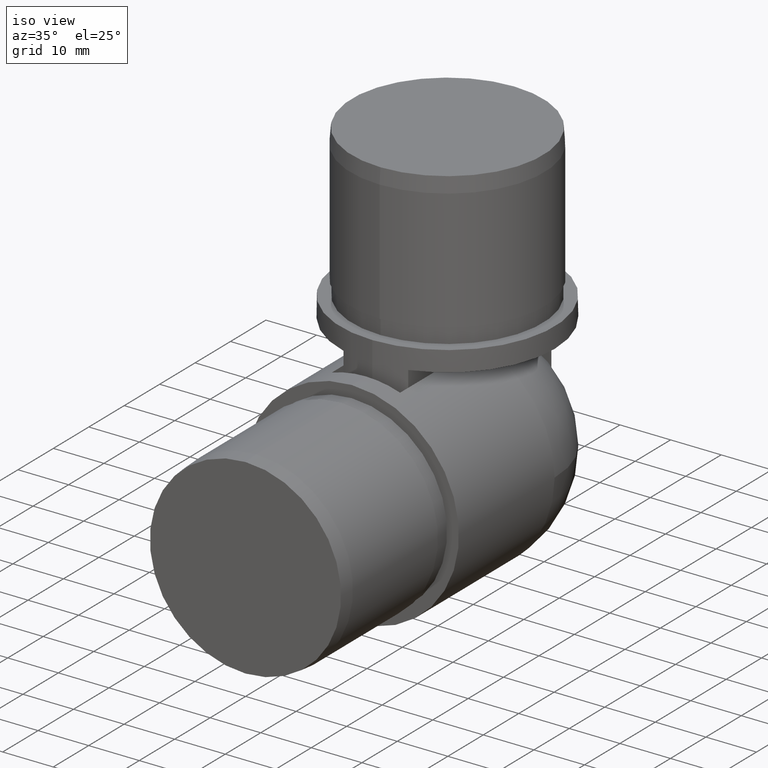
[diagram: clean part render]
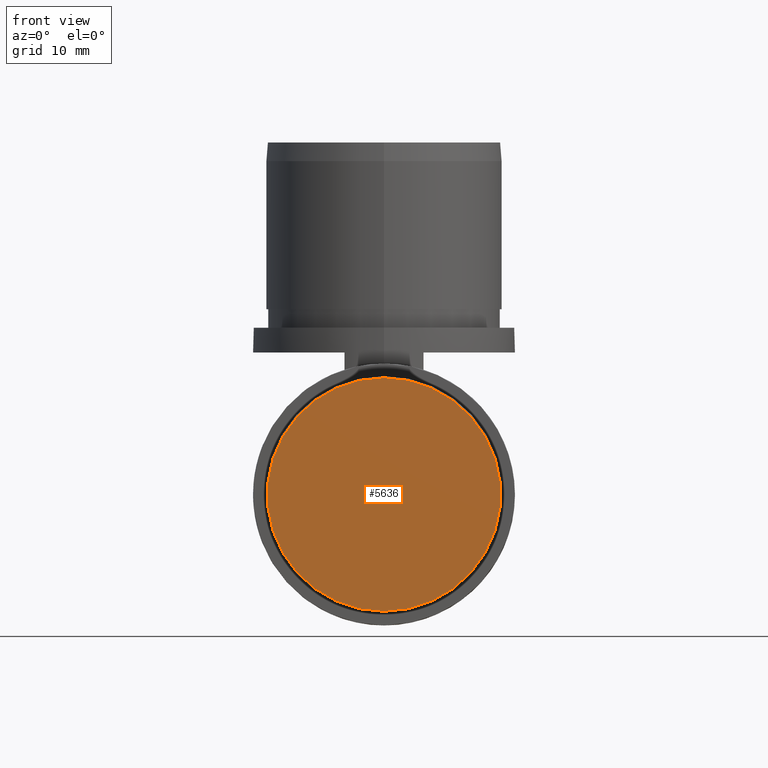
[diagram: tour spotlight — one face highlighted and labeled with its STEP entity id]
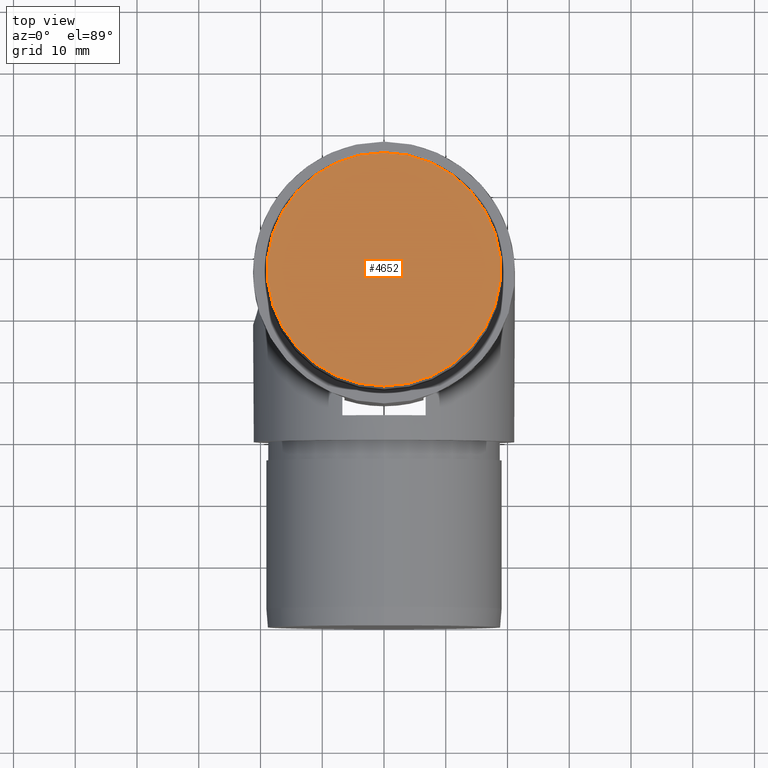
[diagram: tour spotlight — one face highlighted and labeled with its STEP entity id]
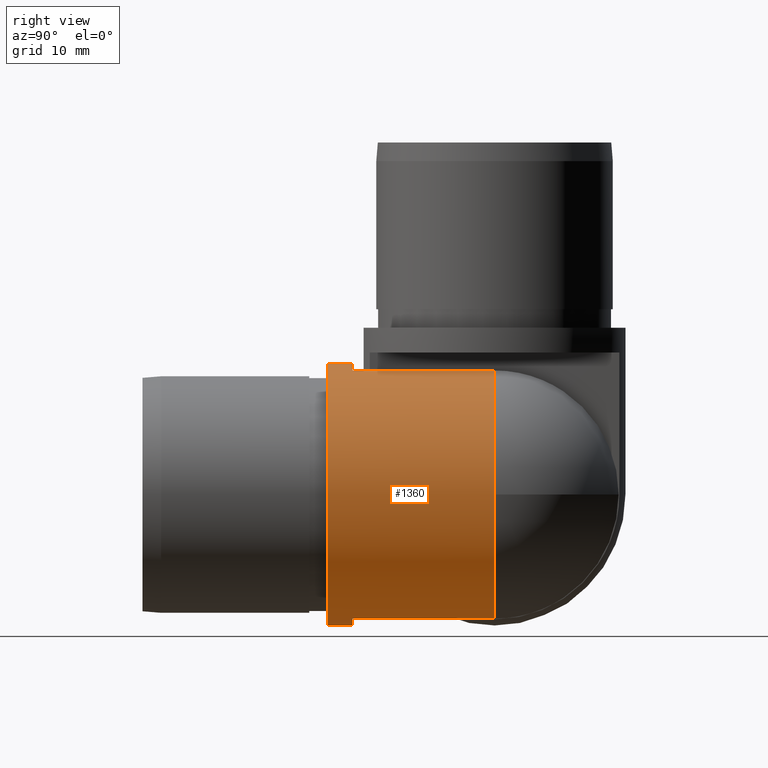
[diagram: tour spotlight — one face highlighted and labeled with its STEP entity id]
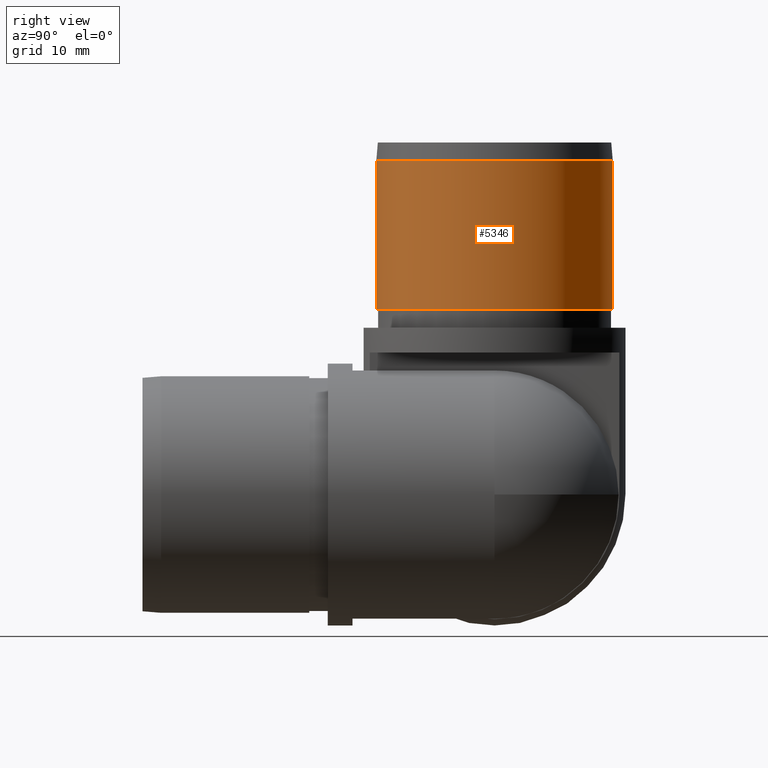
[diagram: tour spotlight — one face highlighted and labeled with its STEP entity id]
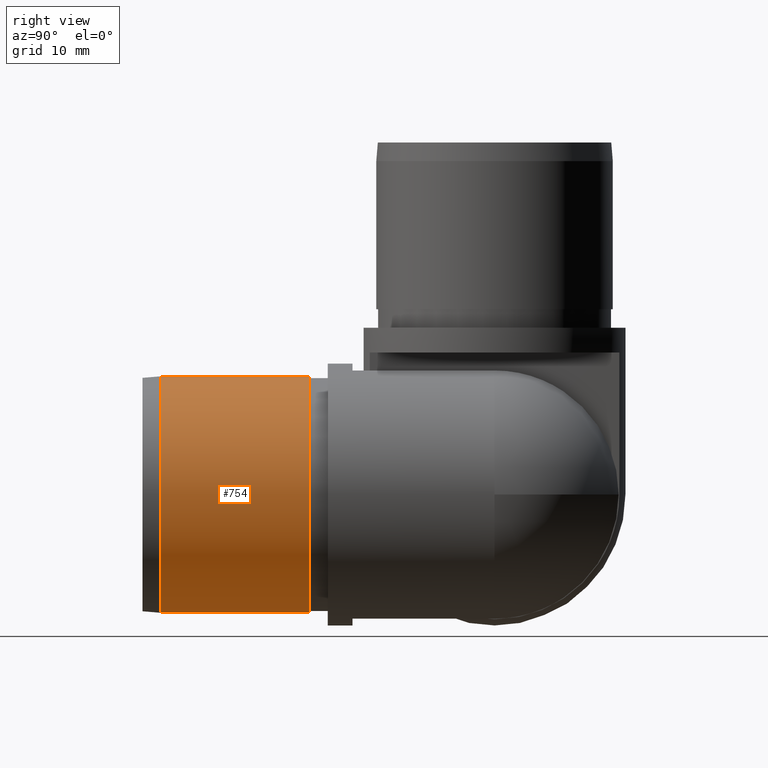
[diagram: tour spotlight — one face highlighted and labeled with its STEP entity id]
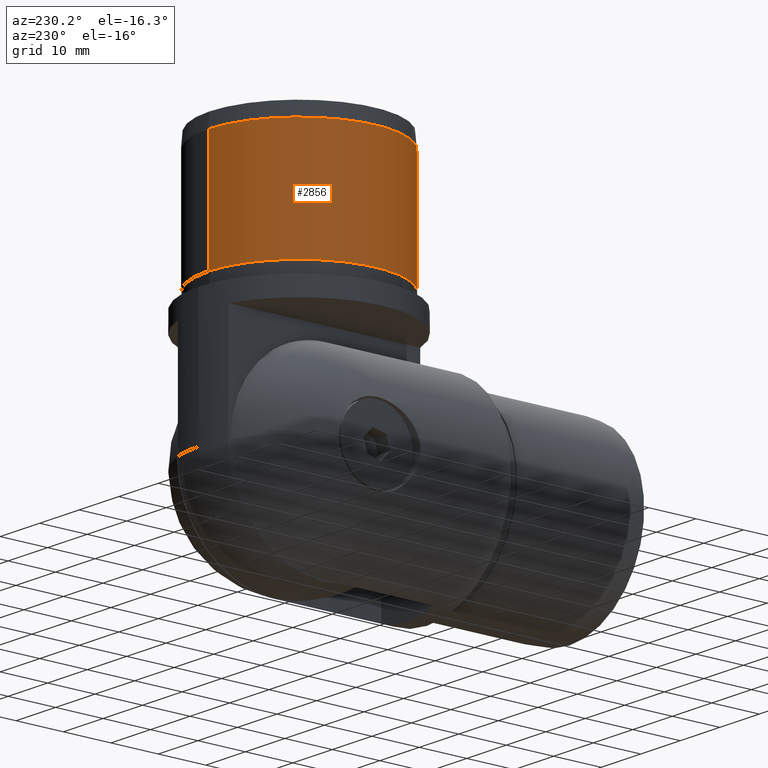
[diagram: tour spotlight — one face highlighted and labeled with its STEP entity id]
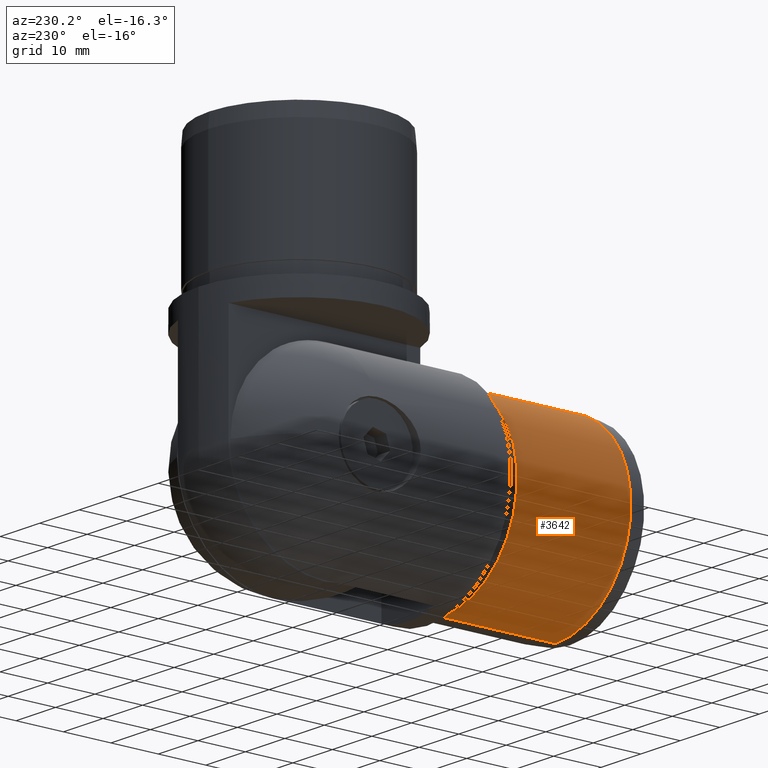
[diagram: tour spotlight — one face highlighted and labeled with its STEP entity id]
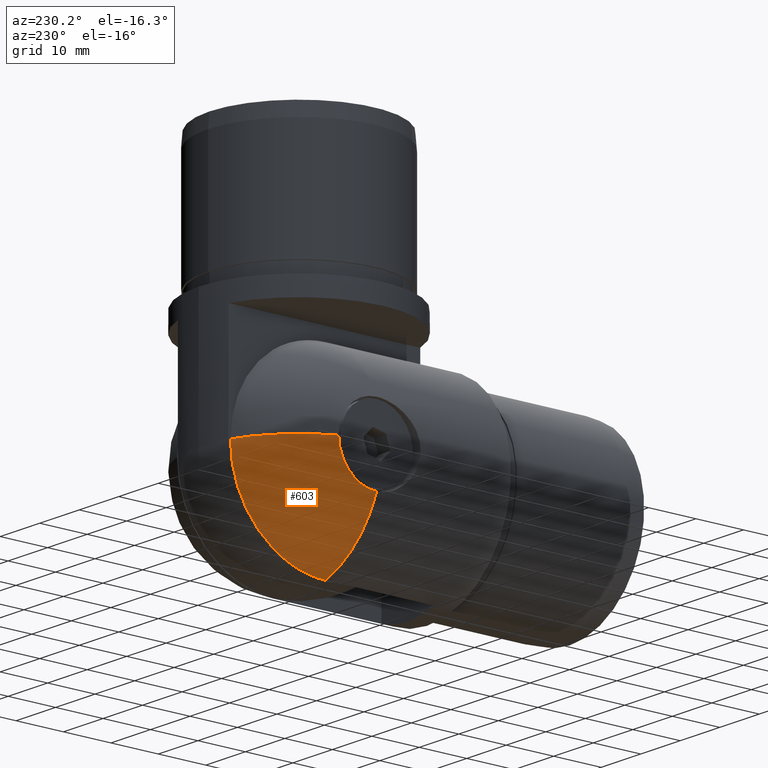
[diagram: tour spotlight — one face highlighted and labeled with its STEP entity id]
A machine part: a face-by-face anatomy tour. The part has 189 B-rep faces; the first image is the clean iso view, then the 8 largest visible faces are spotlighted one at a time (largest first), each with its STEP entity span.

Face 1 — front view, entity #5636. In plain terms, the highlighted planar face has unit normal (0, 1, 0).
Definition (entity closure, byte-faithful):
#605 = CARTESIAN_POINT ( 'NONE',  ( 0.0000000000000000000, -6.123233995736109987E-18, 18.89999999999999858 ) ) ;
#642 = DIRECTION ( 'NONE',  ( 0.0000000000000000000, 0.0000000000000000000, -1.000000000000000000 ) ) ;
#879 = EDGE_CURVE ( 'NONE', #2937, #3050, #2299, .T. ) ;
#973 = EDGE_CURVE ( 'NONE', #3050, #2937, #4429, .T. ) ;
#1075 = ORIENTED_EDGE ( 'NONE', *, *, #973, .T. ) ;
#1630 = DIRECTION ( 'NONE',  ( 0.0000000000000000000, 0.0000000000000000000, -1.000000000000000000 ) ) ;
#1644 = CARTESIAN_POINT ( 'NONE',  ( 0.0000000000000000000, -6.123233995736109987E-18, 0.0000000000000000000 ) ) ;
#2299 = CIRCLE ( 'NONE', #4786, 18.89999999999999858 ) ;
#2755 = CARTESIAN_POINT ( 'NONE',  ( 0.0000000000000000000, 0.0000000000000000000, 0.0000000000000000000 ) ) ;
#2937 = VERTEX_POINT ( 'NONE', #5194 ) ;
#3050 = VERTEX_POINT ( 'NONE', #605 ) ;
#3200 = AXIS2_PLACEMENT_3D ( 'NONE', #2755, #6016, #3228 ) ;
#3228 = DIRECTION ( 'NONE',  ( 1.000000000000000000, 0.0000000000000000000, 0.0000000000000000000 ) ) ;
#3757 = PLANE ( 'NONE',  #3200 ) ;
#3877 = ORIENTED_EDGE ( 'NONE', *, *, #879, .T. ) ;
#3939 = DIRECTION ( 'NONE',  ( 0.0000000000000000000, -1.000000000000000000, 0.0000000000000000000 ) ) ;
#4066 = DIRECTION ( 'NONE',  ( 0.0000000000000000000, -1.000000000000000000, 0.0000000000000000000 ) ) ;
#4429 = CIRCLE ( 'NONE', #5621, 18.89999999999999858 ) ;
#4561 = FACE_OUTER_BOUND ( 'NONE', #5661, .T. ) ;
#4786 = AXIS2_PLACEMENT_3D ( 'NONE', #5300, #3939, #642 ) ;
#5194 = CARTESIAN_POINT ( 'NONE',  ( 2.329890535377839901E-15, -6.123233995736109987E-18, -18.89999999999999858 ) ) ;
#5300 = CARTESIAN_POINT ( 'NONE',  ( 0.0000000000000000000, -6.123233995736109987E-18, 0.0000000000000000000 ) ) ;
#5621 = AXIS2_PLACEMENT_3D ( 'NONE', #1644, #4066, #1630 ) ;
#5636 = ADVANCED_FACE ( 'NONE', ( #4561 ), #3757, .F. ) ;
#5661 = EDGE_LOOP ( 'NONE', ( #1075, #3877 ) ) ;
#6016 = DIRECTION ( 'NONE',  ( -0.0000000000000000000, 1.000000000000000000, 0.0000000000000000000 ) ) ;

Face 2 — top view, entity #4652. In plain terms, the highlighted planar face has unit normal (-0, 0, -1).
Definition (entity closure, byte-faithful):
#326 = VERTEX_POINT ( 'NONE', #4454 ) ;
#529 = CARTESIAN_POINT ( 'NONE',  ( 2.329885131888929971E-15, -6.885117476151960768E-16, -18.89999999999999858 ) ) ;
#550 = AXIS2_PLACEMENT_3D ( 'NONE', #3611, #3586, #4036 ) ;
#1328 = DIRECTION ( 'NONE',  ( -1.312996062451055837E-38, 1.000000000000000000, 3.642919299551299212E-17 ) ) ;
#1398 = DIRECTION ( 'NONE',  ( 3.604241418723654948E-22, -1.000000000000000000, -3.642919299551299212E-17 ) ) ;
#1462 = CARTESIAN_POINT ( 'NONE',  ( 0.0000000000000000000, 0.0000000000000000000, 0.0000000000000000000 ) ) ;
#1515 = EDGE_CURVE ( 'NONE', #326, #4508, #3020, .T. ) ;
#1785 = AXIS2_PLACEMENT_3D ( 'NONE', #1462, #1398, #4271 ) ;
#2312 = EDGE_CURVE ( 'NONE', #4508, #326, #3903, .T. ) ;
#2472 = AXIS2_PLACEMENT_3D ( 'NONE', #6019, #1328, #3277 ) ;
#2962 = ORIENTED_EDGE ( 'NONE', *, *, #2312, .T. ) ;
#3020 = CIRCLE ( 'NONE', #550, 18.89999999999999858 ) ;
#3277 = DIRECTION ( 'NONE',  ( 1.000000000000000000, 0.0000000000000000000, 3.604241418723654948E-22 ) ) ;
#3586 = DIRECTION ( 'NONE',  ( 3.604241418723654948E-22, -1.000000000000000000, -3.642919299551299212E-17 ) ) ;
#3611 = CARTESIAN_POINT ( 'NONE',  ( 0.0000000000000000000, 0.0000000000000000000, 0.0000000000000000000 ) ) ;
#3903 = CIRCLE ( 'NONE', #1785, 18.89999999999999858 ) ;
#4036 = DIRECTION ( 'NONE',  ( -2.556032959136840767E-22, 3.642919299551299829E-17, -1.000000000000000000 ) ) ;
#4271 = DIRECTION ( 'NONE',  ( -2.556032959136840767E-22, 3.642919299551299829E-17, -1.000000000000000000 ) ) ;
#4454 = CARTESIAN_POINT ( 'NONE',  ( 4.322216491949279679E-21, 6.885117476151830606E-16, 18.89999999999999858 ) ) ;
#4508 = VERTEX_POINT ( 'NONE', #529 ) ;
#4652 = ADVANCED_FACE ( 'NONE', ( #5514 ), #5490, .F. ) ;
#4993 = ORIENTED_EDGE ( 'NONE', *, *, #1515, .T. ) ;
#5490 = PLANE ( 'NONE',  #2472 ) ;
#5514 = FACE_OUTER_BOUND ( 'NONE', #5541, .T. ) ;
#5541 = EDGE_LOOP ( 'NONE', ( #4993, #2962 ) ) ;
#6019 = CARTESIAN_POINT ( 'NONE',  ( 0.0000000000000000000, 0.0000000000000000000, 0.0000000000000000000 ) ) ;

Face 3 — right view, entity #1360. In plain terms, the highlighted cylindrical surface (partial cylindrical patch) has radius 21.2 mm, axis along (0, -1, 0).
Definition (entity closure, byte-faithful):
#124 = ORIENTED_EDGE ( 'NONE', *, *, #1365, .T. ) ;
#135 = CIRCLE ( 'NONE', #598, 21.19999999999999929 ) ;
#167 = EDGE_CURVE ( 'NONE', #548, #4448, #2266, .T. ) ;
#181 = EDGE_CURVE ( 'NONE', #5588, #5720, #2187, .T. ) ;
#408 = ORIENTED_EDGE ( 'NONE', *, *, #4809, .T. ) ;
#433 = CIRCLE ( 'NONE', #2680, 21.19999999999999929 ) ;
#521 = ORIENTED_EDGE ( 'NONE', *, *, #5613, .T. ) ;
#548 = VERTEX_POINT ( 'NONE', #991 ) ;
#598 = AXIS2_PLACEMENT_3D ( 'NONE', #5960, #1262, #5058 ) ;
#716 = DIRECTION ( 'NONE',  ( 0.0000000000000000000, -1.000000000000000000, 0.0000000000000000000 ) ) ;
#910 = DIRECTION ( 'NONE',  ( 0.0000000000000000000, -1.000000000000000000, 0.0000000000000000000 ) ) ;
#920 = ORIENTED_EDGE ( 'NONE', *, *, #181, .F. ) ;
#991 = CARTESIAN_POINT ( 'NONE',  ( 0.0000000000000000000, 34.00000000000000000, -21.19999999999999929 ) ) ;
#1034 = EDGE_CURVE ( 'NONE', #2123, #5588, #135, .T. ) ;
#1097 = VECTOR ( 'NONE', #910, 1000.000000000000000 ) ;
#1126 = DIRECTION ( 'NONE',  ( 0.0000000000000000000, -1.000000000000000000, 0.0000000000000000000 ) ) ;
#1262 = DIRECTION ( 'NONE',  ( 0.0000000000000000000, 1.000000000000000000, 0.0000000000000000000 ) ) ;
#1269 = CARTESIAN_POINT ( 'NONE',  ( 0.0000000000000000000, 57.00000000000000000, -21.19999999999999929 ) ) ;
#1301 = ORIENTED_EDGE ( 'NONE', *, *, #2007, .T. ) ;
#1360 = ADVANCED_FACE ( 'NONE', ( #2497 ), #4801, .T. ) ;
#1365 = EDGE_CURVE ( 'NONE', #548, #5846, #433, .T. ) ;
#1429 = DIRECTION ( 'NONE',  ( 0.0000000000000000000, -1.000000000000000000, 0.0000000000000000000 ) ) ;
#1448 = CARTESIAN_POINT ( 'NONE',  ( 6.750000000000000000, 57.00000000000000000, 20.09670370981269727 ) ) ;
#1470 = EDGE_CURVE ( 'NONE', #5846, #5720, #3909, .T. ) ;
#1691 = AXIS2_PLACEMENT_3D ( 'NONE', #5103, #3692, #4611 ) ;
#2007 = EDGE_CURVE ( 'NONE', #2123, #3100, #5297, .T. ) ;
#2017 = DIRECTION ( 'NONE',  ( 0.0000000000000000000, 1.000000000000000000, 0.0000000000000000000 ) ) ;
#2043 = ORIENTED_EDGE ( 'NONE', *, *, #1034, .F. ) ;
#2123 = VERTEX_POINT ( 'NONE', #4562 ) ;
#2183 = CARTESIAN_POINT ( 'NONE',  ( 0.0000000000000000000, 30.00000000000000000, 0.0000000000000000000 ) ) ;
#2187 = CIRCLE ( 'NONE', #2720, 21.19999999999999929 ) ;
#2266 = LINE ( 'NONE', #1269, #1097 ) ;
#2353 = CARTESIAN_POINT ( 'NONE',  ( 0.0000000000000000000, 57.00000000000000000, 0.0000000000000000000 ) ) ;
#2465 = EDGE_LOOP ( 'NONE', ( #521, #408, #4124, #4502, #124, #6059, #920, #2043, #1301 ) ) ;
#2479 = DIRECTION ( 'NONE',  ( 0.0000000000000000000, 0.0000000000000000000, -1.000000000000000000 ) ) ;
#2497 = FACE_OUTER_BOUND ( 'NONE', #2465, .T. ) ;
#2579 = CARTESIAN_POINT ( 'NONE',  ( 6.750000000000000000, 34.00000000000000000, 20.09670370981269727 ) ) ;
#2608 = CARTESIAN_POINT ( 'NONE',  ( 21.19999999999999929, 57.00000000000000000, 0.0000000000000000000 ) ) ;
#2680 = AXIS2_PLACEMENT_3D ( 'NONE', #3950, #1126, #2479 ) ;
#2720 = AXIS2_PLACEMENT_3D ( 'NONE', #2353, #2818, #4200 ) ;
#2818 = DIRECTION ( 'NONE',  ( 0.0000000000000000000, 1.000000000000000000, 0.0000000000000000000 ) ) ;
#2836 = CARTESIAN_POINT ( 'NONE',  ( 2.596251214192389953E-15, 34.00000000000000000, 21.19999999999999929 ) ) ;
#3005 = AXIS2_PLACEMENT_3D ( 'NONE', #3410, #4313, #5254 ) ;
#3100 = VERTEX_POINT ( 'NONE', #2579 ) ;
#3172 = LINE ( 'NONE', #4161, #4724 ) ;
#3370 = DIRECTION ( 'NONE',  ( 0.0000000000000000000, -1.000000000000000000, 0.0000000000000000000 ) ) ;
#3410 = CARTESIAN_POINT ( 'NONE',  ( 0.0000000000000000000, 57.00000000000000000, 0.0000000000000000000 ) ) ;
#3446 = CARTESIAN_POINT ( 'NONE',  ( 6.750000000000000000, 34.00000000000000000, -20.09670370981269727 ) ) ;
#3530 = CIRCLE ( 'NONE', #1691, 21.19999999999999929 ) ;
#3639 = VERTEX_POINT ( 'NONE', #5850 ) ;
#3692 = DIRECTION ( 'NONE',  ( 0.0000000000000000000, -1.000000000000000000, 0.0000000000000000000 ) ) ;
#3883 = EDGE_CURVE ( 'NONE', #4448, #3639, #4473, .T. ) ;
#3909 = LINE ( 'NONE', #4858, #6004 ) ;
#3950 = CARTESIAN_POINT ( 'NONE',  ( 0.0000000000000000000, 34.00000000000000000, 0.0000000000000000000 ) ) ;
#4104 = DIRECTION ( 'NONE',  ( 0.0000000000000000000, 0.0000000000000000000, -1.000000000000000000 ) ) ;
#4124 = ORIENTED_EDGE ( 'NONE', *, *, #3883, .F. ) ;
#4161 = CARTESIAN_POINT ( 'NONE',  ( 2.596251214192389953E-15, 57.00000000000000000, 21.19999999999999929 ) ) ;
#4200 = DIRECTION ( 'NONE',  ( 0.0000000000000000000, 0.0000000000000000000, 1.000000000000000000 ) ) ;
#4310 = CARTESIAN_POINT ( 'NONE',  ( 6.750000000000000000, 57.00000000000000000, -20.09670370981269727 ) ) ;
#4313 = DIRECTION ( 'NONE',  ( 0.0000000000000000000, -1.000000000000000000, 0.0000000000000000000 ) ) ;
#4448 = VERTEX_POINT ( 'NONE', #5600 ) ;
#4473 = CIRCLE ( 'NONE', #5282, 21.19999999999999929 ) ;
#4502 = ORIENTED_EDGE ( 'NONE', *, *, #167, .F. ) ;
#4562 = CARTESIAN_POINT ( 'NONE',  ( 6.750000000000000000, 57.00000000000000000, 20.09670370981269727 ) ) ;
#4611 = DIRECTION ( 'NONE',  ( 0.0000000000000000000, 0.0000000000000000000, -1.000000000000000000 ) ) ;
#4724 = VECTOR ( 'NONE', #3370, 1000.000000000000000 ) ;
#4801 = CYLINDRICAL_SURFACE ( 'NONE', #3005, 21.19999999999999929 ) ;
#4809 = EDGE_CURVE ( 'NONE', #5754, #3639, #3172, .T. ) ;
#4858 = CARTESIAN_POINT ( 'NONE',  ( 6.750000000000000000, 57.00000000000000000, -20.09670370981269727 ) ) ;
#5058 = DIRECTION ( 'NONE',  ( 0.0000000000000000000, 0.0000000000000000000, 1.000000000000000000 ) ) ;
#5103 = CARTESIAN_POINT ( 'NONE',  ( 0.0000000000000000000, 34.00000000000000000, 0.0000000000000000000 ) ) ;
#5254 = DIRECTION ( 'NONE',  ( 0.0000000000000000000, 0.0000000000000000000, -1.000000000000000000 ) ) ;
#5282 = AXIS2_PLACEMENT_3D ( 'NONE', #2183, #716, #4104 ) ;
#5297 = LINE ( 'NONE', #1448, #5869 ) ;
#5588 = VERTEX_POINT ( 'NONE', #2608 ) ;
#5600 = CARTESIAN_POINT ( 'NONE',  ( 0.0000000000000000000, 30.00000000000000000, -21.19999999999999929 ) ) ;
#5613 = EDGE_CURVE ( 'NONE', #3100, #5754, #3530, .T. ) ;
#5720 = VERTEX_POINT ( 'NONE', #4310 ) ;
#5754 = VERTEX_POINT ( 'NONE', #2836 ) ;
#5846 = VERTEX_POINT ( 'NONE', #3446 ) ;
#5850 = CARTESIAN_POINT ( 'NONE',  ( 2.596251214192389953E-15, 30.00000000000000000, 21.19999999999999929 ) ) ;
#5869 = VECTOR ( 'NONE', #1429, 1000.000000000000000 ) ;
#5960 = CARTESIAN_POINT ( 'NONE',  ( 0.0000000000000000000, 57.00000000000000000, 0.0000000000000000000 ) ) ;
#6004 = VECTOR ( 'NONE', #2017, 1000.000000000000000 ) ;
#6059 = ORIENTED_EDGE ( 'NONE', *, *, #1470, .T. ) ;

Face 4 — right view, entity #5346. In plain terms, the highlighted cylindrical surface (partial cylindrical patch) has radius 19.15 mm, axis along (0, 0, 1).
Definition (entity closure, byte-faithful):
#60 = VERTEX_POINT ( 'NONE', #5532 ) ;
#152 = CARTESIAN_POINT ( 'NONE',  ( 9.020562075079399415E-14, 30.00000000000000000, 0.0000000000000000000 ) ) ;
#193 = ORIENTED_EDGE ( 'NONE', *, *, #3442, .F. ) ;
#281 = CIRCLE ( 'NONE', #1818, 19.14999999999999858 ) ;
#470 = ORIENTED_EDGE ( 'NONE', *, *, #699, .T. ) ;
#610 = DIRECTION ( 'NONE',  ( 3.604241418723654948E-22, -1.000000000000000000, -9.212559859584561173E-44 ) ) ;
#620 = DIRECTION ( 'NONE',  ( 3.604241418723654948E-22, -1.000000000000000000, 3.642919299551234501E-17 ) ) ;
#699 = EDGE_CURVE ( 'NONE', #5967, #1843, #3264, .T. ) ;
#886 = EDGE_CURVE ( 'NONE', #5967, #4182, #3568, .T. ) ;
#911 = DIRECTION ( 'NONE',  ( 3.604241418723654948E-22, -1.000000000000000000, 3.642919299551234501E-17 ) ) ;
#1357 = DIRECTION ( 'NONE',  ( 3.604241418723654948E-22, -1.000000000000000000, -4.529304114821939678E-17 ) ) ;
#1564 = DIRECTION ( 'NONE',  ( -2.556032959314630996E-22, 0.0000000000000000000, -1.000000000000000000 ) ) ;
#1727 = AXIS2_PLACEMENT_3D ( 'NONE', #1993, #2466, #3453 ) ;
#1818 = AXIS2_PLACEMENT_3D ( 'NONE', #2810, #1357, #4159 ) ;
#1840 = CARTESIAN_POINT ( 'NONE',  ( 9.020561585599088762E-14, 30.00000000000000000, -19.14999999999999858 ) ) ;
#1843 = VERTEX_POINT ( 'NONE', #2747 ) ;
#1878 = EDGE_CURVE ( 'NONE', #60, #1843, #281, .T. ) ;
#1993 = CARTESIAN_POINT ( 'NONE',  ( 7.806255641895629400E-14, 27.00000000000000000, 0.0000000000000000000 ) ) ;
#2323 = ORIENTED_EDGE ( 'NONE', *, *, #886, .F. ) ;
#2466 = DIRECTION ( 'NONE',  ( -3.604241418723654948E-22, 1.000000000000000000, 9.212559859584561173E-44 ) ) ;
#2575 = VECTOR ( 'NONE', #911, 1000.000000000000000 ) ;
#2642 = ORIENTED_EDGE ( 'NONE', *, *, #1878, .F. ) ;
#2747 = CARTESIAN_POINT ( 'NONE',  ( 9.255082967232638673E-14, 3.000000000000000000, 19.14999999999999858 ) ) ;
#2810 = CARTESIAN_POINT ( 'NONE',  ( 9.020562075079399415E-14, 3.000000000000000000, -5.724587470723458363E-14 ) ) ;
#2825 = EDGE_LOOP ( 'NONE', ( #2323, #470, #2642, #193 ) ) ;
#2906 = CARTESIAN_POINT ( 'NONE',  ( 7.806255152415318747E-14, 27.00000000000000000, -19.14999999999999858 ) ) ;
#3264 = LINE ( 'NONE', #4811, #3495 ) ;
#3391 = LINE ( 'NONE', #1840, #2575 ) ;
#3442 = EDGE_CURVE ( 'NONE', #4182, #60, #3391, .T. ) ;
#3453 = DIRECTION ( 'NONE',  ( -2.556032959314630996E-22, 0.0000000000000000000, -1.000000000000000000 ) ) ;
#3495 = VECTOR ( 'NONE', #620, 1000.000000000000000 ) ;
#3568 = CIRCLE ( 'NONE', #1727, 19.14999999999999858 ) ;
#4159 = DIRECTION ( 'NONE',  ( -2.556032959314630996E-22, 4.529304114821950772E-17, -1.000000000000000000 ) ) ;
#4182 = VERTEX_POINT ( 'NONE', #2906 ) ;
#4409 = CYLINDRICAL_SURFACE ( 'NONE', #5586, 19.14999999999999858 ) ;
#4447 = CARTESIAN_POINT ( 'NONE',  ( 9.255082967232638673E-14, 27.00000000000000000, 19.14999999999999858 ) ) ;
#4811 = CARTESIAN_POINT ( 'NONE',  ( 9.255082426596428761E-14, 30.00000000000000000, 19.14999999999999858 ) ) ;
#5062 = FACE_OUTER_BOUND ( 'NONE', #2825, .T. ) ;
#5346 = ADVANCED_FACE ( 'NONE', ( #5062 ), #4409, .T. ) ;
#5532 = CARTESIAN_POINT ( 'NONE',  ( 9.020561585599088762E-14, 3.000000000000000000, -19.14999999999999858 ) ) ;
#5586 = AXIS2_PLACEMENT_3D ( 'NONE', #152, #610, #1564 ) ;
#5967 = VERTEX_POINT ( 'NONE', #4447 ) ;

Face 5 — right view, entity #754. In plain terms, the highlighted cylindrical surface (partial cylindrical patch) has radius 19.15 mm, axis along (0, -1, 0).
Definition (entity closure, byte-faithful):
#79 = DIRECTION ( 'NONE',  ( 0.0000000000000000000, 0.0000000000000000000, -1.000000000000000000 ) ) ;
#228 = ORIENTED_EDGE ( 'NONE', *, *, #5248, .F. ) ;
#350 = VERTEX_POINT ( 'NONE', #4925 ) ;
#392 = EDGE_CURVE ( 'NONE', #1332, #350, #6031, .T. ) ;
#522 = VERTEX_POINT ( 'NONE', #6027 ) ;
#751 = CARTESIAN_POINT ( 'NONE',  ( 0.0000000000000000000, 30.00000000000000000, -19.14999999999999858 ) ) ;
#754 = ADVANCED_FACE ( 'NONE', ( #6024 ), #5748, .T. ) ;
#758 = CARTESIAN_POINT ( 'NONE',  ( 0.0000000000000000000, 3.000000000000000000, 0.0000000000000000000 ) ) ;
#850 = ORIENTED_EDGE ( 'NONE', *, *, #1801, .F. ) ;
#1019 = AXIS2_PLACEMENT_3D ( 'NONE', #4285, #1979, #79 ) ;
#1025 = CARTESIAN_POINT ( 'NONE',  ( 2.345198620367179823E-15, 27.00000000000000000, 19.14999999999999858 ) ) ;
#1332 = VERTEX_POINT ( 'NONE', #1025 ) ;
#1503 = CARTESIAN_POINT ( 'NONE',  ( 2.345198620367179823E-15, 30.00000000000000000, 19.14999999999999858 ) ) ;
#1530 = EDGE_CURVE ( 'NONE', #2301, #350, #3693, .T. ) ;
#1627 = CARTESIAN_POINT ( 'NONE',  ( 0.0000000000000000000, 30.00000000000000000, 0.0000000000000000000 ) ) ;
#1695 = DIRECTION ( 'NONE',  ( 0.0000000000000000000, -1.000000000000000000, 0.0000000000000000000 ) ) ;
#1801 = EDGE_CURVE ( 'NONE', #522, #2301, #2264, .T. ) ;
#1973 = AXIS2_PLACEMENT_3D ( 'NONE', #1627, #4897, #3029 ) ;
#1979 = DIRECTION ( 'NONE',  ( 0.0000000000000000000, 1.000000000000000000, 0.0000000000000000000 ) ) ;
#2247 = AXIS2_PLACEMENT_3D ( 'NONE', #758, #1695, #4934 ) ;
#2264 = LINE ( 'NONE', #751, #3543 ) ;
#2301 = VERTEX_POINT ( 'NONE', #3672 ) ;
#2658 = DIRECTION ( 'NONE',  ( 0.0000000000000000000, -1.000000000000000000, 0.0000000000000000000 ) ) ;
#2905 = ORIENTED_EDGE ( 'NONE', *, *, #1530, .F. ) ;
#3029 = DIRECTION ( 'NONE',  ( 0.0000000000000000000, 0.0000000000000000000, -1.000000000000000000 ) ) ;
#3094 = ORIENTED_EDGE ( 'NONE', *, *, #392, .T. ) ;
#3372 = DIRECTION ( 'NONE',  ( 0.0000000000000000000, -1.000000000000000000, 0.0000000000000000000 ) ) ;
#3543 = VECTOR ( 'NONE', #2658, 1000.000000000000000 ) ;
#3672 = CARTESIAN_POINT ( 'NONE',  ( 0.0000000000000000000, 3.000000000000000000, -19.14999999999999858 ) ) ;
#3693 = CIRCLE ( 'NONE', #2247, 19.14999999999999858 ) ;
#4285 = CARTESIAN_POINT ( 'NONE',  ( 0.0000000000000000000, 27.00000000000000000, 0.0000000000000000000 ) ) ;
#4670 = VECTOR ( 'NONE', #3372, 1000.000000000000000 ) ;
#4891 = CIRCLE ( 'NONE', #1019, 19.14999999999999858 ) ;
#4897 = DIRECTION ( 'NONE',  ( 0.0000000000000000000, -1.000000000000000000, 0.0000000000000000000 ) ) ;
#4925 = CARTESIAN_POINT ( 'NONE',  ( 2.345198620367179823E-15, 3.000000000000000000, 19.14999999999999858 ) ) ;
#4934 = DIRECTION ( 'NONE',  ( 0.0000000000000000000, 0.0000000000000000000, -1.000000000000000000 ) ) ;
#5248 = EDGE_CURVE ( 'NONE', #1332, #522, #4891, .T. ) ;
#5748 = CYLINDRICAL_SURFACE ( 'NONE', #1973, 19.14999999999999858 ) ;
#6005 = EDGE_LOOP ( 'NONE', ( #228, #3094, #2905, #850 ) ) ;
#6024 = FACE_OUTER_BOUND ( 'NONE', #6005, .T. ) ;
#6027 = CARTESIAN_POINT ( 'NONE',  ( 0.0000000000000000000, 27.00000000000000000, -19.14999999999999858 ) ) ;
#6031 = LINE ( 'NONE', #1503, #4670 ) ;

Face 6 — auxiliary view, entity #2856. In plain terms, the highlighted cylindrical surface (partial cylindrical patch) has radius 19.15 mm, axis along (0, 0, 1).
Definition (entity closure, byte-faithful):
#60 = VERTEX_POINT ( 'NONE', #5532 ) ;
#220 = CYLINDRICAL_SURFACE ( 'NONE', #614, 19.14999999999999858 ) ;
#614 = AXIS2_PLACEMENT_3D ( 'NONE', #2768, #1771, #3203 ) ;
#620 = DIRECTION ( 'NONE',  ( 3.604241418723654948E-22, -1.000000000000000000, 3.642919299551234501E-17 ) ) ;
#699 = EDGE_CURVE ( 'NONE', #5967, #1843, #3264, .T. ) ;
#911 = DIRECTION ( 'NONE',  ( 3.604241418723654948E-22, -1.000000000000000000, 3.642919299551234501E-17 ) ) ;
#925 = DIRECTION ( 'NONE',  ( 3.604241418723654948E-22, -1.000000000000000000, -4.529304114821939678E-17 ) ) ;
#1771 = DIRECTION ( 'NONE',  ( 3.604241418723654948E-22, -1.000000000000000000, -9.212559859584561173E-44 ) ) ;
#1840 = CARTESIAN_POINT ( 'NONE',  ( 9.020561585599088762E-14, 30.00000000000000000, -19.14999999999999858 ) ) ;
#1843 = VERTEX_POINT ( 'NONE', #2747 ) ;
#1926 = FACE_OUTER_BOUND ( 'NONE', #4064, .T. ) ;
#2396 = ORIENTED_EDGE ( 'NONE', *, *, #3442, .T. ) ;
#2494 = CIRCLE ( 'NONE', #4885, 19.14999999999999858 ) ;
#2575 = VECTOR ( 'NONE', #911, 1000.000000000000000 ) ;
#2747 = CARTESIAN_POINT ( 'NONE',  ( 9.255082967232638673E-14, 3.000000000000000000, 19.14999999999999858 ) ) ;
#2768 = CARTESIAN_POINT ( 'NONE',  ( 9.020562075079399415E-14, 30.00000000000000000, 0.0000000000000000000 ) ) ;
#2856 = ADVANCED_FACE ( 'NONE', ( #1926 ), #220, .T. ) ;
#2906 = CARTESIAN_POINT ( 'NONE',  ( 7.806255152415318747E-14, 27.00000000000000000, -19.14999999999999858 ) ) ;
#3202 = EDGE_CURVE ( 'NONE', #1843, #60, #2494, .T. ) ;
#3203 = DIRECTION ( 'NONE',  ( -2.556032959314630996E-22, 0.0000000000000000000, -1.000000000000000000 ) ) ;
#3257 = ORIENTED_EDGE ( 'NONE', *, *, #3644, .F. ) ;
#3264 = LINE ( 'NONE', #4811, #3495 ) ;
#3315 = ORIENTED_EDGE ( 'NONE', *, *, #699, .F. ) ;
#3391 = LINE ( 'NONE', #1840, #2575 ) ;
#3442 = EDGE_CURVE ( 'NONE', #4182, #60, #3391, .T. ) ;
#3495 = VECTOR ( 'NONE', #620, 1000.000000000000000 ) ;
#3644 = EDGE_CURVE ( 'NONE', #4182, #5967, #4636, .T. ) ;
#3652 = DIRECTION ( 'NONE',  ( -2.556032959314630996E-22, 0.0000000000000000000, -1.000000000000000000 ) ) ;
#3802 = CARTESIAN_POINT ( 'NONE',  ( 9.020562075079399415E-14, 3.000000000000000000, -5.724587470723458363E-14 ) ) ;
#4064 = EDGE_LOOP ( 'NONE', ( #3315, #3257, #2396, #4220 ) ) ;
#4182 = VERTEX_POINT ( 'NONE', #2906 ) ;
#4220 = ORIENTED_EDGE ( 'NONE', *, *, #3202, .F. ) ;
#4447 = CARTESIAN_POINT ( 'NONE',  ( 9.255082967232638673E-14, 27.00000000000000000, 19.14999999999999858 ) ) ;
#4487 = AXIS2_PLACEMENT_3D ( 'NONE', #5540, #5086, #3652 ) ;
#4636 = CIRCLE ( 'NONE', #4487, 19.14999999999999858 ) ;
#4811 = CARTESIAN_POINT ( 'NONE',  ( 9.255082426596428761E-14, 30.00000000000000000, 19.14999999999999858 ) ) ;
#4885 = AXIS2_PLACEMENT_3D ( 'NONE', #3802, #925, #5049 ) ;
#5049 = DIRECTION ( 'NONE',  ( -2.556032959314630996E-22, 4.529304114821950772E-17, -1.000000000000000000 ) ) ;
#5086 = DIRECTION ( 'NONE',  ( -3.604241418723654948E-22, 1.000000000000000000, 9.212559859584561173E-44 ) ) ;
#5532 = CARTESIAN_POINT ( 'NONE',  ( 9.020561585599088762E-14, 3.000000000000000000, -19.14999999999999858 ) ) ;
#5540 = CARTESIAN_POINT ( 'NONE',  ( 7.806255641895629400E-14, 27.00000000000000000, 0.0000000000000000000 ) ) ;
#5967 = VERTEX_POINT ( 'NONE', #4447 ) ;

Face 7 — auxiliary view, entity #3642. In plain terms, the highlighted cylindrical surface (partial cylindrical patch) has radius 19.15 mm, axis along (0, -1, 0).
Definition (entity closure, byte-faithful):
#126 = AXIS2_PLACEMENT_3D ( 'NONE', #1205, #1192, #4071 ) ;
#350 = VERTEX_POINT ( 'NONE', #4925 ) ;
#392 = EDGE_CURVE ( 'NONE', #1332, #350, #6031, .T. ) ;
#522 = VERTEX_POINT ( 'NONE', #6027 ) ;
#751 = CARTESIAN_POINT ( 'NONE',  ( 0.0000000000000000000, 30.00000000000000000, -19.14999999999999858 ) ) ;
#940 = CYLINDRICAL_SURFACE ( 'NONE', #126, 19.14999999999999858 ) ;
#1025 = CARTESIAN_POINT ( 'NONE',  ( 2.345198620367179823E-15, 27.00000000000000000, 19.14999999999999858 ) ) ;
#1163 = ORIENTED_EDGE ( 'NONE', *, *, #4301, .F. ) ;
#1192 = DIRECTION ( 'NONE',  ( 0.0000000000000000000, -1.000000000000000000, 0.0000000000000000000 ) ) ;
#1205 = CARTESIAN_POINT ( 'NONE',  ( 0.0000000000000000000, 30.00000000000000000, 0.0000000000000000000 ) ) ;
#1294 = ORIENTED_EDGE ( 'NONE', *, *, #1801, .T. ) ;
#1332 = VERTEX_POINT ( 'NONE', #1025 ) ;
#1343 = DIRECTION ( 'NONE',  ( 0.0000000000000000000, 1.000000000000000000, 0.0000000000000000000 ) ) ;
#1459 = ORIENTED_EDGE ( 'NONE', *, *, #392, .F. ) ;
#1503 = CARTESIAN_POINT ( 'NONE',  ( 2.345198620367179823E-15, 30.00000000000000000, 19.14999999999999858 ) ) ;
#1642 = DIRECTION ( 'NONE',  ( 0.0000000000000000000, 0.0000000000000000000, -1.000000000000000000 ) ) ;
#1658 = DIRECTION ( 'NONE',  ( 0.0000000000000000000, -1.000000000000000000, 0.0000000000000000000 ) ) ;
#1801 = EDGE_CURVE ( 'NONE', #522, #2301, #2264, .T. ) ;
#1811 = CARTESIAN_POINT ( 'NONE',  ( 0.0000000000000000000, 27.00000000000000000, 0.0000000000000000000 ) ) ;
#2045 = CARTESIAN_POINT ( 'NONE',  ( 0.0000000000000000000, 3.000000000000000000, 0.0000000000000000000 ) ) ;
#2264 = LINE ( 'NONE', #751, #3543 ) ;
#2301 = VERTEX_POINT ( 'NONE', #3672 ) ;
#2658 = DIRECTION ( 'NONE',  ( 0.0000000000000000000, -1.000000000000000000, 0.0000000000000000000 ) ) ;
#3372 = DIRECTION ( 'NONE',  ( 0.0000000000000000000, -1.000000000000000000, 0.0000000000000000000 ) ) ;
#3543 = VECTOR ( 'NONE', #2658, 1000.000000000000000 ) ;
#3642 = ADVANCED_FACE ( 'NONE', ( #5148 ), #940, .T. ) ;
#3672 = CARTESIAN_POINT ( 'NONE',  ( 0.0000000000000000000, 3.000000000000000000, -19.14999999999999858 ) ) ;
#3756 = CIRCLE ( 'NONE', #5458, 19.14999999999999858 ) ;
#4071 = DIRECTION ( 'NONE',  ( 0.0000000000000000000, 0.0000000000000000000, -1.000000000000000000 ) ) ;
#4301 = EDGE_CURVE ( 'NONE', #350, #2301, #3756, .T. ) ;
#4430 = EDGE_LOOP ( 'NONE', ( #1459, #5079, #1294, #1163 ) ) ;
#4501 = AXIS2_PLACEMENT_3D ( 'NONE', #1811, #1343, #5066 ) ;
#4670 = VECTOR ( 'NONE', #3372, 1000.000000000000000 ) ;
#4721 = EDGE_CURVE ( 'NONE', #522, #1332, #5587, .T. ) ;
#4925 = CARTESIAN_POINT ( 'NONE',  ( 2.345198620367179823E-15, 3.000000000000000000, 19.14999999999999858 ) ) ;
#5066 = DIRECTION ( 'NONE',  ( 0.0000000000000000000, 0.0000000000000000000, -1.000000000000000000 ) ) ;
#5079 = ORIENTED_EDGE ( 'NONE', *, *, #4721, .F. ) ;
#5148 = FACE_OUTER_BOUND ( 'NONE', #4430, .T. ) ;
#5458 = AXIS2_PLACEMENT_3D ( 'NONE', #2045, #1658, #1642 ) ;
#5587 = CIRCLE ( 'NONE', #4501, 19.14999999999999858 ) ;
#6027 = CARTESIAN_POINT ( 'NONE',  ( 0.0000000000000000000, 27.00000000000000000, -19.14999999999999858 ) ) ;
#6031 = LINE ( 'NONE', #1503, #4670 ) ;

Face 8 — auxiliary view, entity #603. In plain terms, the highlighted spherical surface has radius 21.2 mm.
Definition (entity closure, byte-faithful):
#306 = DIRECTION ( 'NONE',  ( 0.0000000000000000000, 0.0000000000000000000, 1.000000000000000000 ) ) ;
#386 = AXIS2_PLACEMENT_3D ( 'NONE', #3283, #3266, #1893 ) ;
#537 = DIRECTION ( 'NONE',  ( -1.000000000000000000, 0.0000000000000000000, -1.224646799147353207E-16 ) ) ;
#581 = EDGE_CURVE ( 'NONE', #3554, #5370, #2745, .T. ) ;
#603 = ADVANCED_FACE ( 'NONE', ( #5253 ), #681, .T. ) ;
#662 = EDGE_LOOP ( 'NONE', ( #1596, #3947, #5937, #1226 ) ) ;
#681 = SPHERICAL_SURFACE ( 'NONE', #386, 21.19999999999999929 ) ;
#724 = DIRECTION ( 'NONE',  ( 0.0000000000000000000, 1.000000000000000000, 0.0000000000000000000 ) ) ;
#1140 = AXIS2_PLACEMENT_3D ( 'NONE', #3748, #4241, #1445 ) ;
#1146 = VERTEX_POINT ( 'NONE', #2316 ) ;
#1226 = ORIENTED_EDGE ( 'NONE', *, *, #3582, .T. ) ;
#1274 = AXIS2_PLACEMENT_3D ( 'NONE', #5888, #724, #306 ) ;
#1445 = DIRECTION ( 'NONE',  ( -4.336808689942017736E-16, 1.000000000000000000, 0.0000000000000000000 ) ) ;
#1490 = CARTESIAN_POINT ( 'NONE',  ( -6.750000000000000000, 77.09670370981270082, -8.266365894244635319E-16 ) ) ;
#1596 = ORIENTED_EDGE ( 'NONE', *, *, #581, .T. ) ;
#1893 = DIRECTION ( 'NONE',  ( 1.000000000000000000, 0.0000000000000000000, 0.0000000000000000000 ) ) ;
#2176 = CIRCLE ( 'NONE', #2236, 21.19999999999999929 ) ;
#2236 = AXIS2_PLACEMENT_3D ( 'NONE', #2863, #3310, #537 ) ;
#2316 = CARTESIAN_POINT ( 'NONE',  ( -6.750000000000000000, 57.00000000000000000, -20.09670370981269727 ) ) ;
#2745 = CIRCLE ( 'NONE', #1140, 8.000000000000000000 ) ;
#2863 = CARTESIAN_POINT ( 'NONE',  ( 0.0000000000000000000, 57.00000000000000000, 0.0000000000000000000 ) ) ;
#3233 = AXIS2_PLACEMENT_3D ( 'NONE', #4570, #5007, #4081 ) ;
#3266 = DIRECTION ( 'NONE',  ( 0.0000000000000000000, 0.0000000000000000000, -1.000000000000000000 ) ) ;
#3283 = CARTESIAN_POINT ( 'NONE',  ( 0.0000000000000000000, 57.00000000000000000, 0.0000000000000000000 ) ) ;
#3310 = DIRECTION ( 'NONE',  ( 1.224646799147353207E-16, 0.0000000000000000000, -1.000000000000000000 ) ) ;
#3554 = VERTEX_POINT ( 'NONE', #4520 ) ;
#3580 = CARTESIAN_POINT ( 'NONE',  ( -19.63262590689285148, 65.00000000000000000, 0.0000000000000000000 ) ) ;
#3582 = EDGE_CURVE ( 'NONE', #1146, #3554, #4918, .T. ) ;
#3748 = CARTESIAN_POINT ( 'NONE',  ( -19.63262590689285148, 57.00000000000000000, 0.0000000000000000000 ) ) ;
#3947 = ORIENTED_EDGE ( 'NONE', *, *, #5731, .T. ) ;
#4081 = DIRECTION ( 'NONE',  ( 0.0000000000000000000, 0.0000000000000000000, 1.000000000000000000 ) ) ;
#4241 = DIRECTION ( 'NONE',  ( 1.000000000000000000, 4.336808689942015271E-16, 0.0000000000000000000 ) ) ;
#4520 = CARTESIAN_POINT ( 'NONE',  ( -19.63262590689285148, 57.00000000000000000, -8.000000000000000000 ) ) ;
#4570 = CARTESIAN_POINT ( 'NONE',  ( -6.750000000000000000, 57.00000000000000000, 0.0000000000000000000 ) ) ;
#4613 = CIRCLE ( 'NONE', #3233, 20.09670370981269727 ) ;
#4918 = CIRCLE ( 'NONE', #1274, 21.19999999999999929 ) ;
#5007 = DIRECTION ( 'NONE',  ( 1.000000000000000000, 0.0000000000000000000, 0.0000000000000000000 ) ) ;
#5036 = EDGE_CURVE ( 'NONE', #1146, #5837, #4613, .T. ) ;
#5253 = FACE_OUTER_BOUND ( 'NONE', #662, .T. ) ;
#5370 = VERTEX_POINT ( 'NONE', #3580 ) ;
#5731 = EDGE_CURVE ( 'NONE', #5370, #5837, #2176, .T. ) ;
#5837 = VERTEX_POINT ( 'NONE', #1490 ) ;
#5888 = CARTESIAN_POINT ( 'NONE',  ( 0.0000000000000000000, 57.00000000000000000, 0.0000000000000000000 ) ) ;
#5937 = ORIENTED_EDGE ( 'NONE', *, *, #5036, .F. ) ;